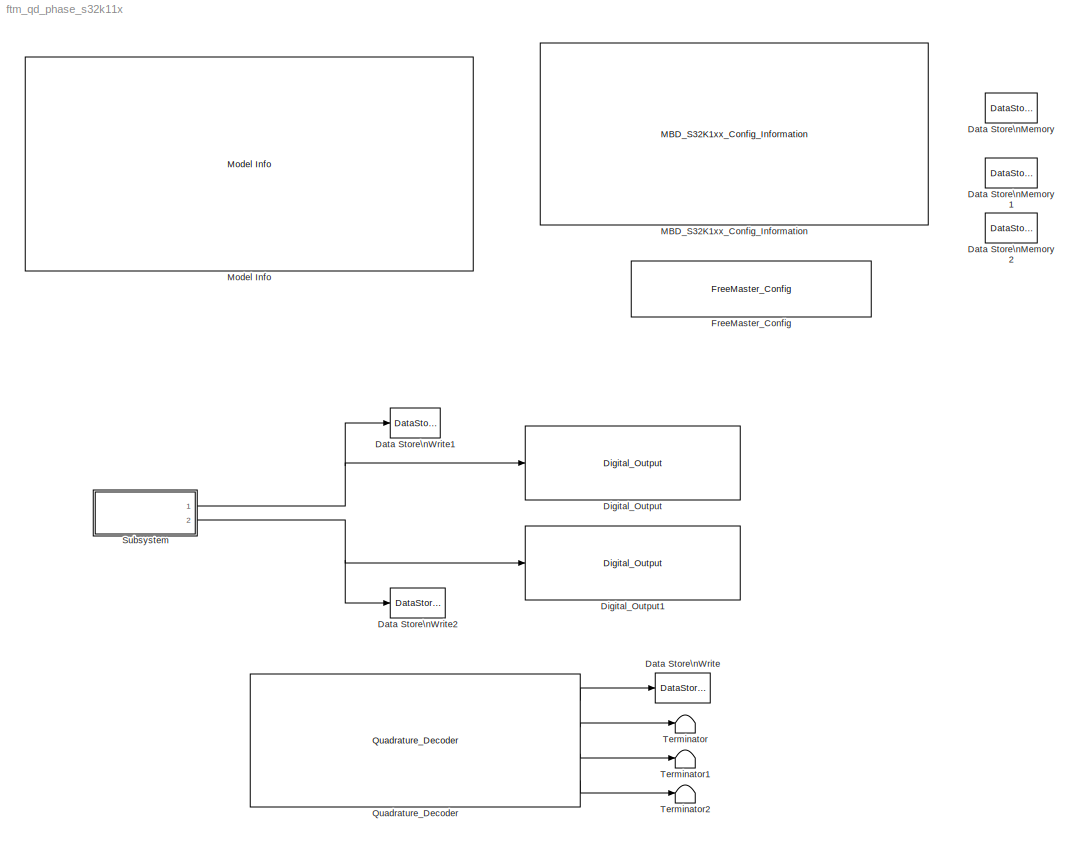
MODEL ftm_qd_phase_s32k11x
KIND model
CONFIG InitFcn = mbd_s32k_consistency_checks(bdroot(gcs));
BLOCK [DataStoreMemory] Data Store\nMemory
  DataStoreName = Counter
  OutDataTypeStr = uint16
  ReadBeforeWriteMsg = warning
  SID = 4
  ShowAdditionalParam = off
  WriteAfterReadMsg = warning
  WriteAfterWriteMsg = warning
BLOCK [DataStoreMemory] Data Store\nMemory1
  DataStoreName = Phase_A
  OutDataTypeStr = boolean
  ReadBeforeWriteMsg = warning
  SID = 27
  ShowAdditionalParam = off
  WriteAfterReadMsg = warning
  WriteAfterWriteMsg = warning
BLOCK [DataStoreMemory] Data Store\nMemory2
  DataStoreName = Phase_B
  OutDataTypeStr = boolean
  ReadBeforeWriteMsg = warning
  SID = 28
  ShowAdditionalParam = off
  WriteAfterReadMsg = warning
  WriteAfterWriteMsg = warning
BLOCK [DataStoreWrite] Data Store\nWrite
  DataStoreElements = Counter
  DataStoreName = Counter
  Ports = [1]
  SID = 5
BLOCK [DataStoreWrite] Data Store\nWrite1
  DataStoreName = Phase_A
  Ports = [1]
  SID = 34
BLOCK [DataStoreWrite] Data Store\nWrite2
  DataStoreName = Phase_B
  Ports = [1]
  SID = 35
BLOCK [Reference] Digital_Output  REF=mbd_s32k1xx_ec_toolbox/GPIO Blocks/Digital_Output
  Ports = [1]
  SID = 10
  SourceBlock = mbd_s32k1xx_ec_toolbox/GPIO Blocks/Digital_Output
  SourceType = gpio_s32k_output
  drive_strength = Low
  gpio_pin = PTC3: [PTC3 | Port C I/O]
  init_val = Low
BLOCK [Reference] Digital_Output1  REF=mbd_s32k1xx_ec_toolbox/GPIO Blocks/Digital_Output
  Ports = [1]
  SID = 11
  SourceBlock = mbd_s32k1xx_ec_toolbox/GPIO Blocks/Digital_Output
  SourceType = gpio_s32k_output
  drive_strength = Low
  gpio_pin = PTC2: [PTC2 | Port C I/O]
  init_val = Low
BLOCK [Reference] FreeMaster_Config  REF=mbd_s32k1xx_ec_toolbox/Utility Blocks/FreeMaster_Config
  Ports = []
  SID = 15
  SourceBlock = mbd_s32k1xx_ec_toolbox/Utility Blocks/FreeMaster_Config
  SourceType = fm_s32k_config
  baudrate = 115200
  comm_buffer_size = 255
  comm_buffer_size_auto = on
  comm_rqueue_size = 32
  comm_rqueue_size_default = on
  interface = LPUART0
  isr_prio = 0
  max_rec_vars = 8
  max_scope_vars = 8
  mode = Short Interrupt
  rec_buff_size = 1024
  rec_timebase = 0
  rec_timebase_unit = seconds
  rxd = PTB0: [LPUART0_RX | Receive]
  show_adv_opts = on
  txd = PTB1: [LPUART0_TX | Transmit]
  use_recorder = on
  use_scope = on
BLOCK [Reference] MBD_S32K1xx_Config_Information  REF=mbd_s32k1xx_ec_toolbox/MBD_S32K1xx_Config_Information
  ADC_PcrCheckEnDis = on
  AMMCLIB_PcrCheckEnDis = on
  CMP_PcrCheckEnDis = on
  CSEc_PcrCheckEnDis = on
  ConfigParams_PcrCheckEnDis = on
  FM_PcrCheckEnDis = on
  FTM_Dual_Edge_Inputs_PcrCheckEnDis = on
  FTM_Hall_Sensor_Inputs_PcrCheckEnDis = on
  FTM_Input_Edge_Inputs_PcrCheckEnDis = on
  FTM_PWM_PcrCheckEnDis = on
  FTM_Quadrature_Inputs_PcrCheckEnDis = on
  FlexCAN_PcrCheckEnDis = on
  FlexIO_PcrCheckEnDis = on
  GPIO_InputPcrCheckEnDis = on
  GPIO_OutputPcrCheckEnDis = on
  LIN_PcrCheckEnDis = on
  LPI2C_PcrCheckEnDis = on
  LPSPI_PcrCheckEnDis = on
  LPTMR_PcrCheckEnDis = on
  LPUART_PcrCheckEnDis = on
  ModelRef_PcrCheckEnDis = on
  PDB0_PcrCheckEnDis = on
  PIT_PcrCheckEnDis = on
  Ports = []
  Profile_PcrCheckEnDis = on
  RTC_PcrCheckEnDis = on
  SBC_PcrCheckEnDis = on
  SID = 26
  SourceBlock = mbd_s32k1xx_ec_toolbox/MBD_S32K1xx_Config_Information
  SourceType = MBDTBX_EC_S32K
  WDOG_PcrCheckEnDis = on
  config_params = []
  disp_str = Target : S32K144-64KB_SRAM\nPackage : 100-pin\nSystem clock : 80 MHz\nXTAL clock : External 8 MHz\nCompiler : IAR\nTarget Type : FLASH\nDownload Code after build : off\nStep Tick Interrupt Priority : 15
  ds_import_enable = on
  eDMA_PcrCheckEnDis = on
  gcc_target_assemble_opts = -mcpu=cortex-m0plus -mthumb -g
  gcc_target_compile_opts = -mcpu=cortex-m0plus -mthumb -O1 -g -gstrict-dwarf
  gcc_target_default_lcf = on
  gcc_target_link_opts = -mcpu=cortex-m0plus -mthumb
  gcc_target_user_lcf = S32K118_25_flash.ld
  ghs_target_assemble_opts = -mcpu=cortexm0plus -mthumb -fsoft --gnu_asm
  ghs_target_compile_opts = -mcpu=cortexm0plus -mthumb -fsoft -Ogeneral -Wundef -Wimplicit-int -Wshadow -Wtrigraphs --no_commons --gnu_asm -gnu99 -gdwarf-2 -G
  ghs_target_default_lcf = on
  ghs_target_link_opts = -mcpu=cortexm0plus -mthumb -fsoft
  ghs_target_user_lcf = S32K118_25_flash.ld
  iar_target_assemble_opts = --thumb
  iar_target_compile_opts = --thumb -Ol -e --debug --dlib_config normal
  iar_target_default_lcf = on
  iar_target_link_opts = --no_exceptions --vfe --inline
  iar_target_user_lcf = S32K118_25_flash.icf
  mbdt_ver = 0
  mcu_steptick_prio = 3
  mcu_steptick_timer = LPIT Channel 0
  mcu_system_clock_freq = 40
  mcu_target_name = S32K118
  mcu_target_package = 64-LQFP
  mcu_target_sram_size = 25KB
  mcu_xtal_freq = External 40
  pil_download_enable = off
  pil_download_rate = 57600
  pil_opensda_drive = Custom
  pil_opensda_drive_custom = D
  pil_uart_instance = 0
  pil_uart_rx = PTA2: [LPUART0_RX | Receive]
  pil_uart_tx = PTA3: [LPUART0_TX | Transmit]
  rbl_com_port = Custom
  rbl_com_port_custom = COM1
  rbl_download_enable = on
  rbl_download_interface = OpenSDA
  rbl_restart_request = off
  rbl_start_delay = 5000
  target_compiler = GCC
  target_memory = FLASH
BLOCK [Reference] Model Info  REF=simulink/Model-Wide\nUtilities/Model Info
  DisplayStringWithTags = Model Name: %<ModelName>\n\nDescription: %<Description>
  Frame = off
  HorizontalTextAlignment = Left
  LeftAlignmentValue = 0.02
  MaskDisplayString = Model Name: ftm_qd_phase_s32k11x\\n\\nDescription: This model shows FlexTimer Quadrature Decoder Mode in Phase A and B on <path> PTC3 output to FTM1 Phase A input PTB3\\nConnect PTC2 output to FTM1 Phase B input PTB2\\n\\nValidation:\\nYou can see FTM1 Counter value increment and decrement\\nin Count and Direction Mode by FreeMaster ftm_qd_phase_s32k11x.
  Ports = []
  SID = 36
  SourceBlock = simulink/Model-Wide\nUtilities/Model Info
  SourceProductBaseCode = SL
  SourceProductName = Simulink
  SourceType = CMBlock
BLOCK [Reference] Quadrature_Decoder  REF=mbd_s32k1xx_ec_toolbox/Motor Control Blocks/FTM Blocks/Quadrature_Decoder
  Ports = [0, 4]
  Priority = 1
  SID = 12
  SourceBlock = mbd_s32k1xx_ec_toolbox/Motor Control Blocks/FTM Blocks/Quadrature_Decoder
  SourceType = FTM_s32k_qd_block
  cntin = 0
  ec_mode = Phase A and Phase B
  ftmModule = 1
  mod = 65535
  phA_filter = 0
  phA_filtr_en = off
  phA_pin = PTB3: [FTM1_QD_PHA | FTM quadrature Decode PhaseA]
  phB_filter = 0
  phB_filtr_en = off
  phB_pin = PTB2: [FTM1_QD_PHB | FTM quadrature Decode PhaseB]
  polA = Normal
  polB = Normal
  prescaler = 1
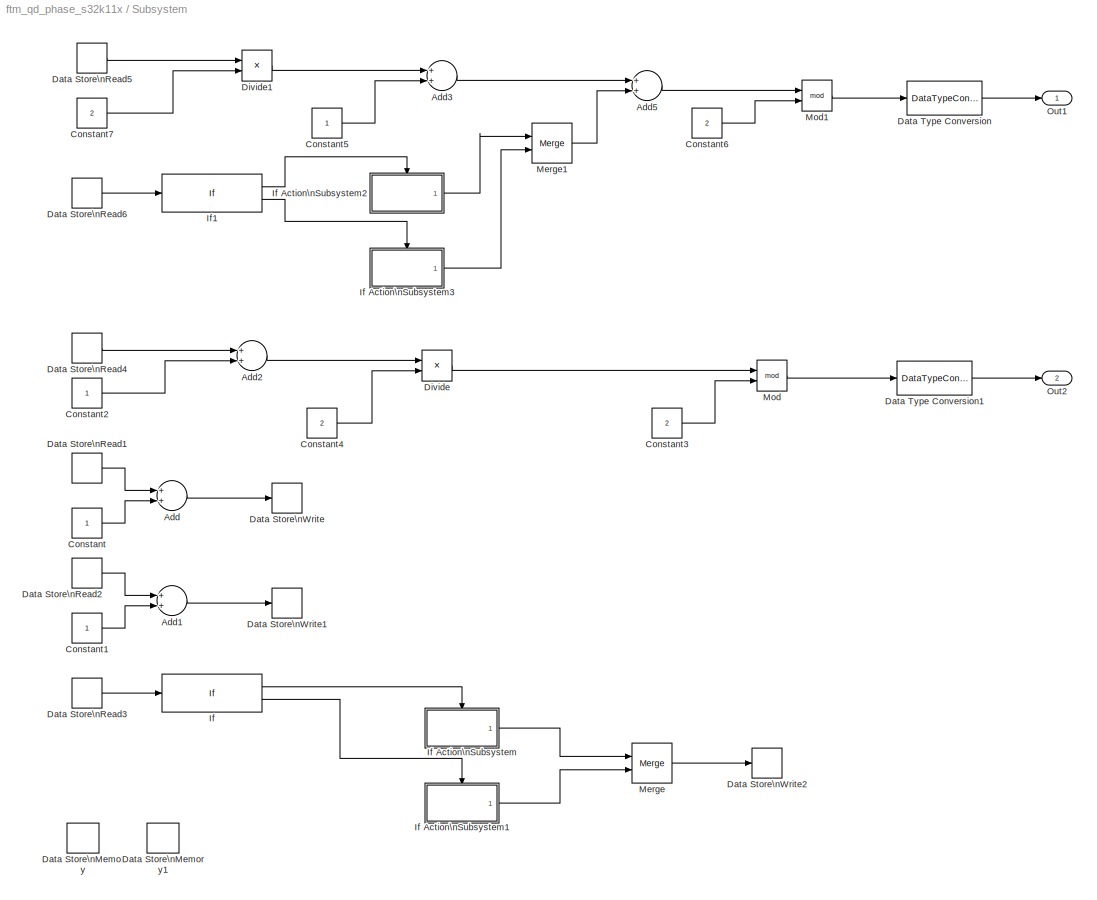
BLOCK [SubSystem] Subsystem
  Ports = [0, 2]
  RequestExecContextInheritance = off
  SID = 43
  Variant = off
BLOCK [Sum] Subsystem/Add
  InputSameDT = off
  OutDataTypeStr = Inherit: Inherit via internal rule
  Ports = [2, 1]
  SID = 196
  SaturateOnIntegerOverflow = off
BLOCK [Sum] Subsystem/Add1
  InputSameDT = off
  OutDataTypeStr = Inherit: Inherit via internal rule
  Ports = [2, 1]
  SID = 197
  SaturateOnIntegerOverflow = off
BLOCK [Sum] Subsystem/Add2
  InputSameDT = off
  OutDataTypeStr = Inherit: Inherit via internal rule
  Ports = [2, 1]
  SID = 198
  SaturateOnIntegerOverflow = off
BLOCK [Sum] Subsystem/Add3
  InputSameDT = off
  OutDataTypeStr = Inherit: Inherit via internal rule
  Ports = [2, 1]
  SID = 199
  SaturateOnIntegerOverflow = off
BLOCK [Sum] Subsystem/Add5
  InputSameDT = off
  OutDataTypeStr = Inherit: Inherit via internal rule
  Ports = [2, 1]
  SID = 200
  SaturateOnIntegerOverflow = off
BLOCK [Constant] Subsystem/Constant
  OutDataTypeStr = Inherit: Inherit via back propagation
  SID = 201
BLOCK [Constant] Subsystem/Constant1
  OutDataTypeStr = uint8
  SID = 202
BLOCK [Constant] Subsystem/Constant2
  OutDataTypeStr = uint8
  SID = 203
BLOCK [Constant] Subsystem/Constant3
  OutDataTypeStr = uint8
  SID = 204
  Value = 2
BLOCK [Constant] Subsystem/Constant4
  OutDataTypeStr = uint8
  SID = 205
  Value = 2
BLOCK [Constant] Subsystem/Constant5
  OutDataTypeStr = uint8
  SID = 206
BLOCK [Constant] Subsystem/Constant6
  OutDataTypeStr = uint8
  SID = 207
  Value = 2
BLOCK [Constant] Subsystem/Constant7
  OutDataTypeStr = uint8
  SID = 208
  Value = 2
BLOCK [DataStoreMemory] Subsystem/Data Store\nMemory
  DataStoreName = cntr0
  OutDataTypeStr = uint8
  ReadBeforeWriteMsg = warning
  SID = 209
  ShowAdditionalParam = off
  WriteAfterReadMsg = warning
  WriteAfterWriteMsg = warning
BLOCK [DataStoreMemory] Subsystem/Data Store\nMemory1
  DataStoreName = cntr1
  OutDataTypeStr = uint8
  ReadBeforeWriteMsg = warning
  SID = 210
  ShowAdditionalParam = off
  WriteAfterReadMsg = warning
  WriteAfterWriteMsg = warning
BLOCK [DataStoreRead] Subsystem/Data Store\nRead1
  DataStoreName = cntr0
  Ports = [0, 1]
  Priority = 15
  SID = 211
BLOCK [DataStoreRead] Subsystem/Data Store\nRead2
  DataStoreName = cntr1
  Ports = [0, 1]
  Priority = 15
  SID = 212
BLOCK [DataStoreRead] Subsystem/Data Store\nRead3
  DataStoreName = cntr1
  Ports = [0, 1]
  Priority = 15
  SID = 213
BLOCK [DataStoreRead] Subsystem/Data Store\nRead4
  DataStoreName = cntr0
  Ports = [0, 1]
  Priority = 0
  SID = 214
BLOCK [DataStoreRead] Subsystem/Data Store\nRead5
  DataStoreName = cntr0
  Ports = [0, 1]
  Priority = 0
  SID = 215
BLOCK [DataStoreRead] Subsystem/Data Store\nRead6
  DataStoreName = cntr1
  Ports = [0, 1]
  Priority = 0
  SID = 216
BLOCK [DataStoreWrite] Subsystem/Data Store\nWrite
  DataStoreName = cntr0
  Ports = [1]
  SID = 217
BLOCK [DataStoreWrite] Subsystem/Data Store\nWrite1
  DataStoreName = cntr1
  Ports = [1]
  SID = 218
BLOCK [DataStoreWrite] Subsystem/Data Store\nWrite2
  DataStoreName = cntr1
  Ports = [1]
  SID = 219
BLOCK [DataTypeConversion] Subsystem/Data Type Conversion
  OutDataTypeStr = boolean
  RndMeth = Floor
  SID = 247
  SaturateOnIntegerOverflow = off
BLOCK [DataTypeConversion] Subsystem/Data Type Conversion1
  OutDataTypeStr = boolean
  RndMeth = Floor
  SID = 248
  SaturateOnIntegerOverflow = off
BLOCK [Product] Subsystem/Divide
  InputSameDT = off
  Inputs = */
  OutDataTypeStr = uint8
  Ports = [2, 1]
  RndMeth = Floor
  SID = 220
  SaturateOnIntegerOverflow = off
BLOCK [Product] Subsystem/Divide1
  InputSameDT = off
  Inputs = */
  OutDataTypeStr = uint8
  Ports = [2, 1]
  RndMeth = Floor
  SID = 221
  SaturateOnIntegerOverflow = off
BLOCK [If] Subsystem/If
  IfExpression = u1 > 59
  Ports = [1, 2]
  SID = 222
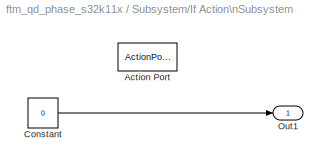
BLOCK [SubSystem] Subsystem/If Action\nSubsystem
  Ports = [0, 1, 0, 0, 0, 0, 0, 1]
  RequestExecContextInheritance = off
  SID = 223
  TreatAsAtomicUnit = on
  Variant = off
BLOCK [ActionPort] Subsystem/If Action\nSubsystem/Action Port
  SID = 224
BLOCK [Constant] Subsystem/If Action\nSubsystem/Constant
  OutDataTypeStr = Inherit: Inherit via back propagation
  SID = 225
  Value = 0
BLOCK [Outport] Subsystem/If Action\nSubsystem/Out1
  IconDisplay = Port number
  SID = 226
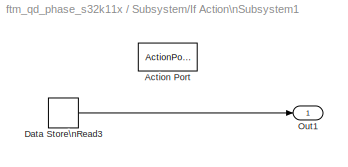
BLOCK [SubSystem] Subsystem/If Action\nSubsystem1
  Ports = [0, 1, 0, 0, 0, 0, 0, 1]
  RequestExecContextInheritance = off
  SID = 227
  TreatAsAtomicUnit = on
  Variant = off
BLOCK [ActionPort] Subsystem/If Action\nSubsystem1/Action Port
  SID = 228
BLOCK [DataStoreRead] Subsystem/If Action\nSubsystem1/Data Store\nRead3
  DataStoreName = cntr1
  Ports = [0, 1]
  Priority = 16
  SID = 229
BLOCK [Outport] Subsystem/If Action\nSubsystem1/Out1
  IconDisplay = Port number
  SID = 230
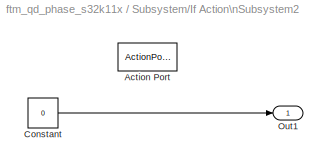
BLOCK [SubSystem] Subsystem/If Action\nSubsystem2
  Ports = [0, 1, 0, 0, 0, 0, 0, 1]
  RequestExecContextInheritance = off
  SID = 231
  TreatAsAtomicUnit = on
  Variant = off
BLOCK [ActionPort] Subsystem/If Action\nSubsystem2/Action Port
  SID = 232
BLOCK [Constant] Subsystem/If Action\nSubsystem2/Constant
  OutDataTypeStr = uint8
  SID = 233
  Value = 0
BLOCK [Outport] Subsystem/If Action\nSubsystem2/Out1
  IconDisplay = Port number
  SID = 234
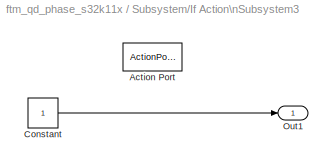
BLOCK [SubSystem] Subsystem/If Action\nSubsystem3
  Ports = [0, 1, 0, 0, 0, 0, 0, 1]
  RequestExecContextInheritance = off
  SID = 235
  TreatAsAtomicUnit = on
  Variant = off
BLOCK [ActionPort] Subsystem/If Action\nSubsystem3/Action Port
  SID = 236
BLOCK [Constant] Subsystem/If Action\nSubsystem3/Constant
  OutDataTypeStr = uint8
  SID = 237
BLOCK [Outport] Subsystem/If Action\nSubsystem3/Out1
  IconDisplay = Port number
  SID = 238
BLOCK [If] Subsystem/If1
  IfExpression = u1 < 30
  Ports = [1, 2]
  SID = 239
BLOCK [Merge] Subsystem/Merge
  Ports = [2, 1]
  SID = 240
BLOCK [Merge] Subsystem/Merge1
  Ports = [2, 1]
  SID = 241
BLOCK [Math] Subsystem/Mod
  Operator = mod
  Ports = [2, 1]
  SID = 242
BLOCK [Math] Subsystem/Mod1
  Operator = mod
  Ports = [2, 1]
  SID = 243
BLOCK [Outport] Subsystem/Out1
  IconDisplay = Port number
  SID = 245
BLOCK [Outport] Subsystem/Out2
  IconDisplay = Port number
  Port = 2
  SID = 246
BLOCK [Terminator] Terminator
  SID = 39
BLOCK [Terminator] Terminator1
  SID = 40
BLOCK [Terminator] Terminator2
  SID = 41
LINE Quadrature_Decoder:1 -> Data Store\nWrite:1
LINE Quadrature_Decoder:2 -> Terminator:1
LINE Quadrature_Decoder:3 -> Terminator1:1
LINE Quadrature_Decoder:4 -> Terminator2:1
LINE Subsystem/Add1:1 -> Subsystem/Data Store\nWrite1:1
LINE Subsystem/Add2:1 -> Subsystem/Divide:1
LINE Subsystem/Add3:1 -> Subsystem/Add5:1
LINE Subsystem/Add5:1 -> Subsystem/Mod1:1
LINE Subsystem/Add:1 -> Subsystem/Data Store\nWrite:1
LINE Subsystem/Constant1:1 -> Subsystem/Add1:2
LINE Subsystem/Constant2:1 -> Subsystem/Add2:2
LINE Subsystem/Constant3:1 -> Subsystem/Mod:2
LINE Subsystem/Constant4:1 -> Subsystem/Divide:2
LINE Subsystem/Constant5:1 -> Subsystem/Add3:2
LINE Subsystem/Constant6:1 -> Subsystem/Mod1:2
LINE Subsystem/Constant7:1 -> Subsystem/Divide1:2
LINE Subsystem/Constant:1 -> Subsystem/Add:2
LINE Subsystem/Data Store\nRead1:1 -> Subsystem/Add:1
LINE Subsystem/Data Store\nRead2:1 -> Subsystem/Add1:1
LINE Subsystem/Data Store\nRead3:1 -> Subsystem/If:1
LINE Subsystem/Data Store\nRead4:1 -> Subsystem/Add2:1
LINE Subsystem/Data Store\nRead5:1 -> Subsystem/Divide1:1
LINE Subsystem/Data Store\nRead6:1 -> Subsystem/If1:1
LINE Subsystem/Data Type Conversion1:1 -> Subsystem/Out2:1
LINE Subsystem/Data Type Conversion:1 -> Subsystem/Out1:1
LINE Subsystem/Divide1:1 -> Subsystem/Add3:1
LINE Subsystem/Divide:1 -> Subsystem/Mod:1
LINE Subsystem/If Action\nSubsystem/Constant:1 -> Subsystem/If Action\nSubsystem/Out1:1
LINE Subsystem/If Action\nSubsystem1/Data Store\nRead3:1 -> Subsystem/If Action\nSubsystem1/Out1:1
LINE Subsystem/If Action\nSubsystem1:1 -> Subsystem/Merge:2
LINE Subsystem/If Action\nSubsystem2/Constant:1 -> Subsystem/If Action\nSubsystem2/Out1:1
LINE Subsystem/If Action\nSubsystem2:1 -> Subsystem/Merge1:1
LINE Subsystem/If Action\nSubsystem3/Constant:1 -> Subsystem/If Action\nSubsystem3/Out1:1
LINE Subsystem/If Action\nSubsystem3:1 -> Subsystem/Merge1:2
LINE Subsystem/If Action\nSubsystem:1 -> Subsystem/Merge:1
LINE Subsystem/If1:1 -> Subsystem/If Action\nSubsystem2:ifaction
LINE Subsystem/If1:2 -> Subsystem/If Action\nSubsystem3:ifaction
LINE Subsystem/If:1 -> Subsystem/If Action\nSubsystem:ifaction
LINE Subsystem/If:2 -> Subsystem/If Action\nSubsystem1:ifaction
LINE Subsystem/Merge1:1 -> Subsystem/Add5:2
LINE Subsystem/Merge:1 -> Subsystem/Data Store\nWrite2:1
LINE Subsystem/Mod1:1 -> Subsystem/Data Type Conversion:1
LINE Subsystem/Mod:1 -> Subsystem/Data Type Conversion1:1
NET Subsystem:1 -> Data Store\nWrite1:1, Digital_Output:1
NET Subsystem:2 -> Data Store\nWrite2:1, Digital_Output1:1
note: NET lines group one-source signal fan-out (src -> all destinations, sorted); 1:1 wires keep LINE
note: 1 file-system path scrubbed to <path> (not preserved elsewhere — flat text is the only slx artifact)
